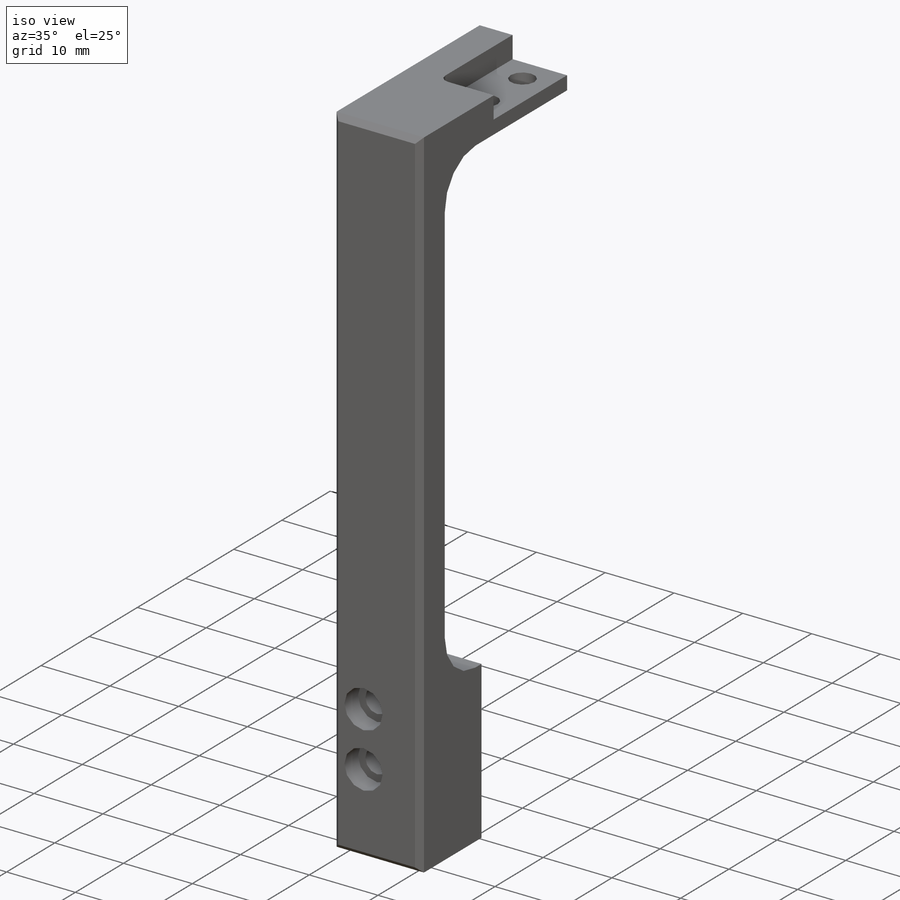
[diagram: iso view]
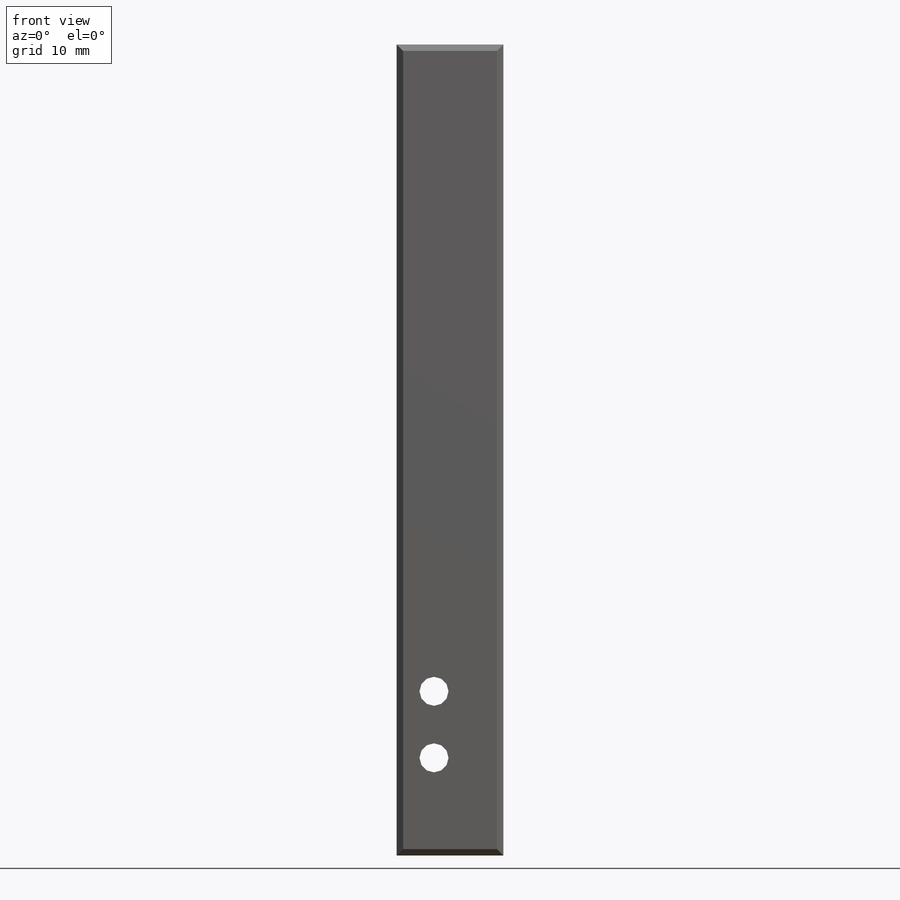
[diagram: front view]
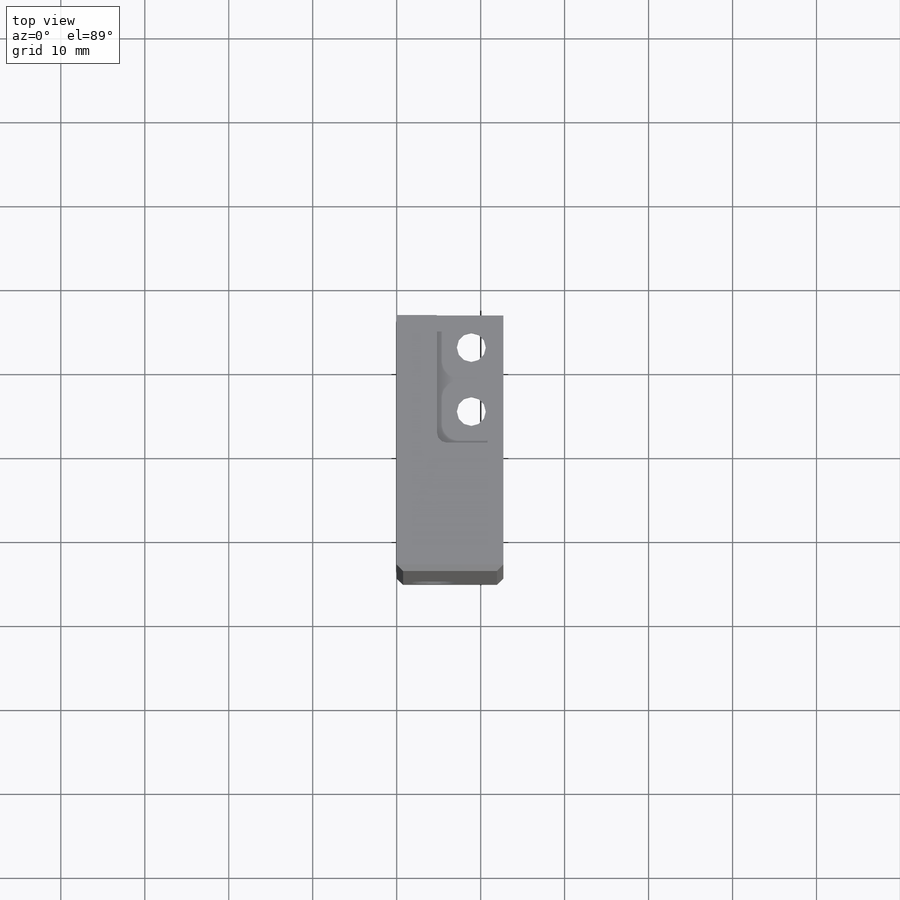
[diagram: top view]
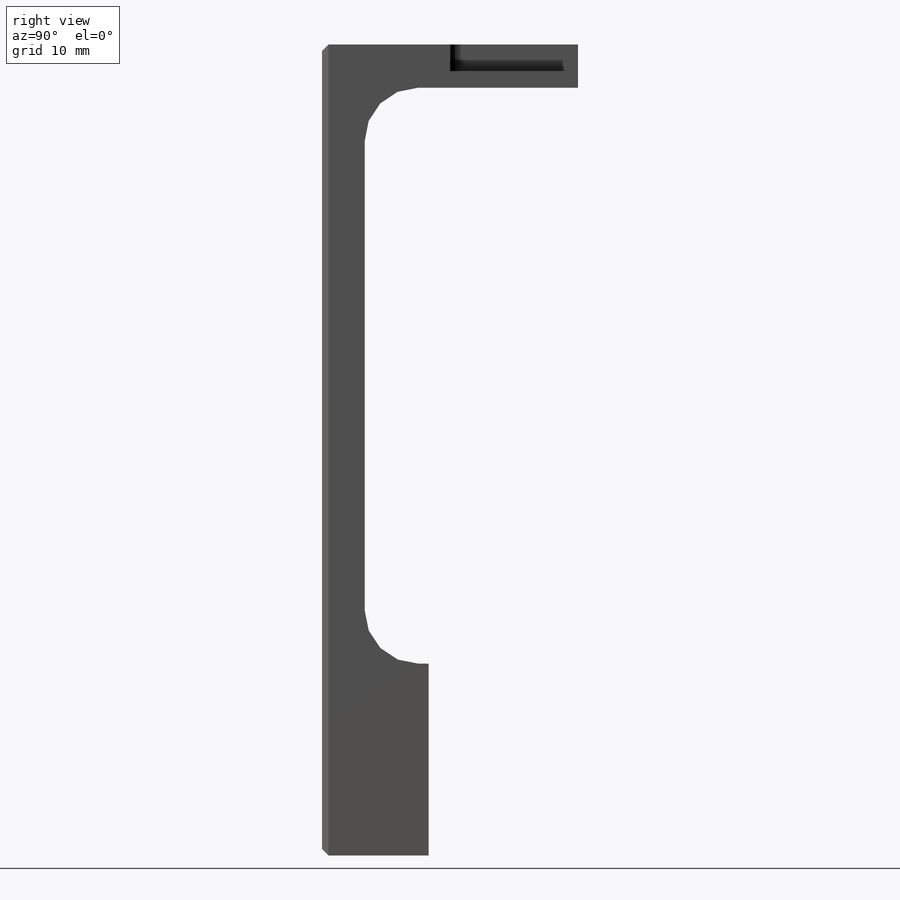
[diagram: right view]
SOLIDWORKS PART (.sldprt)
format: sldprt  version: not decoded by parser v0  size: 309,248 bytes
history: native  units: mm
features: sketch x8, extrude x3, hole x2, fillet x2, material x1, cut_extrude x1, chamfer x1 (+16 scaffold rows collapsed)
feature tree (34):
  scaffold x16  (default folders/planes/origin — collapsed)
  material  "COPPER"
  sketch  "Sketch1"  dims[D1=96.5962mm D2=12.7mm]
  extrude  "Extrude1"  Depth=5.08mm
  sketch  "Sketch2"  dims[D1=5.1562mm]
  extrude  "Extrude2"  Depth=25.4mm
  sketch  "Sketch6"  dims[D1=22.86mm]
  extrude  "Extrude4"  Depth=7.62mm
  hole  "#4 Clearance Hole1"  Diameter=3.4544mm Depth=96.5962mm
  sketch  "Sketch9"  dims[c1.D1=7.62mm c1.D2=3.81mm c1.D3=3.175mm c2.D2=8.89mm c2.D3=13.97mm]
  sketch  "Sketch8"  dims[hole-wizard template sketch: 60 standard entries collapsed; hole parameters kept: c18.Thru Hole Depth=96.5962mm]
  sketch  "Sketch7"  dims[D1=7.9248mm D2=15.24mm D3=6.35mm D4=10.16mm]
  cut_extrude  "Extrude5"  Depth=3.175mm
  fillet  "Fillet1"  Radius=1.27mm
  fillet  "Fillet2"  Radius=6.35mm
  chamfer  "Chamfer1"  Distance=0.762mm Angle=45deg
  hole  "CBORE for #4 Socket Head Cap Screw1"  Diameter=3.4544mm Depth=30.48mm
  sketch  "Sketch17"  dims[c1.D1=10.16mm c1.D2=7.9248mm c1.D3=4.445mm c2.D1=19.558mm]
  sketch  "Sketch16"  dims[hole-wizard template sketch: 41 standard entries collapsed; hole parameters kept: c12.Thru Hole Dia.=3.4544mm c12.Thru Hole Depth=30.48mm c12.C'Bore Dia.=~5.55752mm c12.C'Bore Depth=2.8448mm]
decode coverage: 17 of 17 modeling features carry decoded parameters
note: ~ marks probable driven/reference dimensions
note: suppression state not decoded; provenance and decode notes live in map.json
